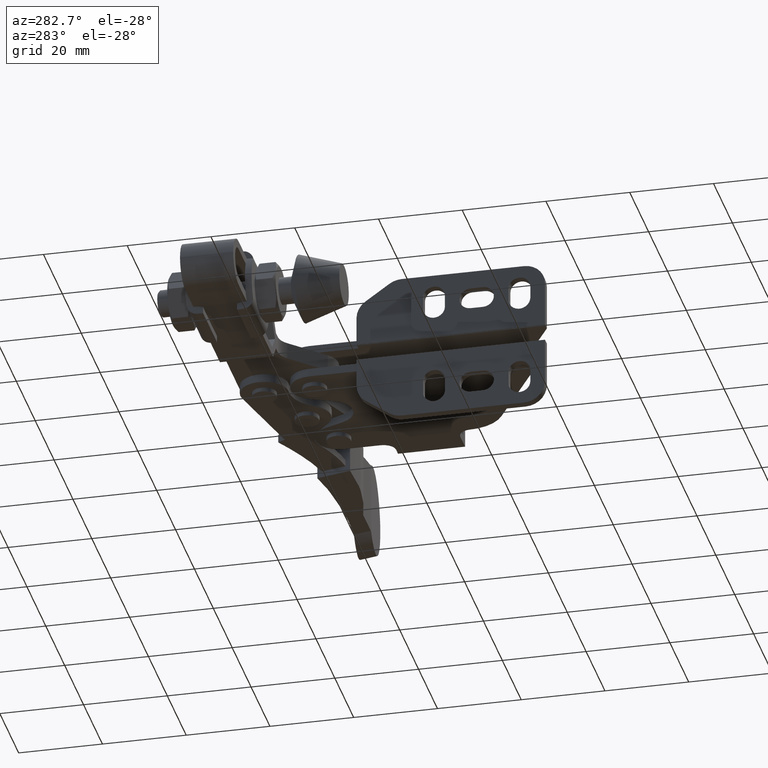
[diagram: clean part render]
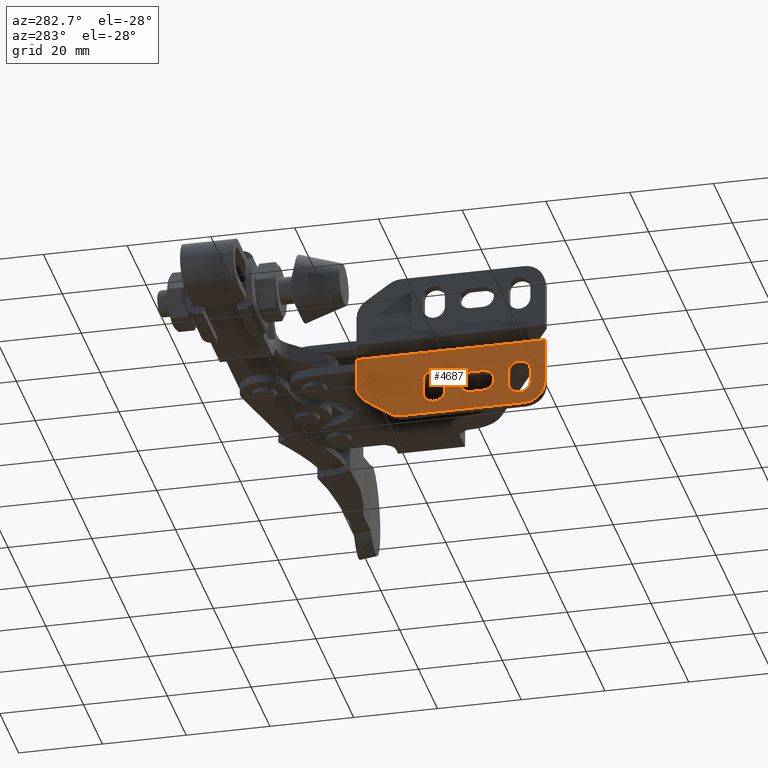
[diagram: same view with one face highlighted and labeled with its STEP entity id]
A machine part, auxiliary view. The second image highlights one B-rep face of the part: STEP entity #4687.
In plain terms, the highlighted planar face has unit normal (-1, 0.0001, 0).
Its self-contained STEP definition (entity closure, byte-faithful):
#14 = EDGE_CURVE ( 'NONE', #5847, #737, #891, .T. ) ;
#22 = CARTESIAN_POINT ( 'NONE',  ( -39.00215116450738200, -13.10340391243418200, -14.50000000000009900 ) ) ;
#72 = LINE ( 'NONE', #10039, #3658 ) ;
#96 = EDGE_CURVE ( 'NONE', #3368, #10732, #9291, .T. ) ;
#183 = CARTESIAN_POINT ( 'NONE',  ( -39.00215116450738200, -33.50340391243416600, -11.50000000000010100 ) ) ;
#190 = CARTESIAN_POINT ( 'NONE',  ( -39.00215116450738200, -7.903403912434181500, -11.50000000000010100 ) ) ;
#241 = CARTESIAN_POINT ( 'NONE',  ( -39.00215116450738200, -22.20340391243417200, -10.40000000000010000 ) ) ;
#271 = CARTESIAN_POINT ( 'NONE',  ( -39.00215116450738200, -19.20340391243417600, -13.00000000000009900 ) ) ;
#313 = CARTESIAN_POINT ( 'NONE',  ( -39.00215116450738200, -32.00340391243416600, -15.00000000000067700 ) ) ;
#458 = VERTEX_POINT ( 'NONE', #241 ) ;
#479 = DIRECTION ( 'NONE',  ( -0.0000000000000000000, 3.469446951953611000E-015, -1.000000000000000000 ) ) ;
#553 = DIRECTION ( 'NONE',  ( -1.000000000000000000, 0.0000000000000000000, 0.0000000000000000000 ) ) ;
#609 = VERTEX_POINT ( 'NONE', #1738 ) ;
#725 = CARTESIAN_POINT ( 'NONE',  ( -39.00215116450738200, -19.20340391243417600, -15.60000000000009900 ) ) ;
#737 = VERTEX_POINT ( 'NONE', #3731 ) ;
#809 = VERTEX_POINT ( 'NONE', #5213 ) ;
#836 = CARTESIAN_POINT ( 'NONE',  ( -39.00215116450738200, 0.1286231605111404200, -19.09985378199445800 ) ) ;
#882 = DIRECTION ( 'NONE',  ( 0.0000000000000000000, 0.0000000000000000000, -1.000000000000000000 ) ) ;
#891 = CIRCLE ( 'NONE', #7262, 2.599999999999994800 ) ;
#909 = LINE ( 'NONE', #10175, #5234 ) ;
#912 = EDGE_LOOP ( 'NONE', ( #7122, #9175, #6763, #4748, #6909 ) ) ;
#939 = DIRECTION ( 'NONE',  ( -1.000000000000000000, 0.0000000000000000000, 0.0000000000000000000 ) ) ;
#952 = ORIENTED_EDGE ( 'NONE', *, *, #2745, .T. ) ;
#1035 = ORIENTED_EDGE ( 'NONE', *, *, #2691, .T. ) ;
#1042 = DIRECTION ( 'NONE',  ( 0.0000000000000000000, -0.8199707563987708200, -0.5724054145890197200 ) ) ;
#1096 = CARTESIAN_POINT ( 'NONE',  ( -39.00215116450738200, -32.00340391243416600, -20.00000000000068200 ) ) ;
#1188 = EDGE_LOOP ( 'NONE', ( #4138, #7730, #10144, #4594, #4036 ) ) ;
#1394 = CARTESIAN_POINT ( 'NONE',  ( -39.00215116450738200, -37.00340391243417300, -15.00000000000028100 ) ) ;
#1563 = DIRECTION ( 'NONE',  ( 0.0000000000000000000, 0.0000000000000000000, -1.000000000000000000 ) ) ;
#1643 = AXIS2_PLACEMENT_3D ( 'NONE', #8514, #5214, #7455 ) ;
#1738 = CARTESIAN_POINT ( 'NONE',  ( -39.00215116450738200, 5.858623160511146300, -15.09985378199445800 ) ) ;
#1765 = CIRCLE ( 'NONE', #7009, 2.599999999999994800 ) ;
#1776 = DIRECTION ( 'NONE',  ( 0.0000000000000000000, 0.0000000000000000000, -1.000000000000000000 ) ) ;
#1817 = CARTESIAN_POINT ( 'NONE',  ( -39.00215116450738200, -28.30340391243417400, -11.50000000000010100 ) ) ;
#2043 = CIRCLE ( 'NONE', #9775, 2.599999999999994800 ) ;
#2156 = CARTESIAN_POINT ( 'NONE',  ( -39.00215116450738200, -13.10340391243418200, -11.50000000000010100 ) ) ;
#2261 = FACE_BOUND ( 'NONE', #1188, .T. ) ;
#2346 = VERTEX_POINT ( 'NONE', #725 ) ;
#2408 = FACE_OUTER_BOUND ( 'NONE', #9744, .T. ) ;
#2550 = EDGE_CURVE ( 'NONE', #10388, #5847, #1765, .T. ) ;
#2564 = EDGE_CURVE ( 'NONE', #3711, #10388, #909, .T. ) ;
#2570 = EDGE_CURVE ( 'NONE', #7492, #3711, #2043, .T. ) ;
#2584 = EDGE_CURVE ( 'NONE', #737, #7492, #7180, .T. ) ;
#2604 = EDGE_CURVE ( 'NONE', #5435, #458, #4726, .T. ) ;
#2607 = EDGE_CURVE ( 'NONE', #2346, #5435, #6423, .T. ) ;
#2608 = DIRECTION ( 'NONE',  ( -1.000000000000000000, 0.0000000000000000000, 0.0000000000000000000 ) ) ;
#2622 = EDGE_CURVE ( 'NONE', #8090, #2346, #3692, .T. ) ;
#2638 = EDGE_CURVE ( 'NONE', #458, #8090, #10753, .T. ) ;
#2645 = EDGE_CURVE ( 'NONE', #8999, #3368, #7747, .T. ) ;
#2659 = EDGE_CURVE ( 'NONE', #8667, #8999, #10489, .T. ) ;
#2675 = EDGE_CURVE ( 'NONE', #6275, #8667, #7057, .T. ) ;
#2677 = EDGE_CURVE ( 'NONE', #10732, #6275, #5222, .T. ) ;
#2678 = LINE ( 'NONE', #8964, #10607 ) ;
#2691 = EDGE_CURVE ( 'NONE', #809, #3958, #6411, .T. ) ;
#2692 = EDGE_CURVE ( 'NONE', #3958, #609, #10206, .T. ) ;
#2714 = EDGE_CURVE ( 'NONE', #609, #2992, #2678, .T. ) ;
#2717 = EDGE_CURVE ( 'NONE', #2992, #8425, #6929, .T. ) ;
#2734 = EDGE_CURVE ( 'NONE', #8425, #7290, #7047, .T. ) ;
#2745 = EDGE_CURVE ( 'NONE', #7290, #7680, #7277, .T. ) ;
#2764 = EDGE_CURVE ( 'NONE', #7680, #4181, #72, .T. ) ;
#2766 = EDGE_CURVE ( 'NONE', #4181, #809, #4949, .T. ) ;
#2967 = FACE_BOUND ( 'NONE', #5335, .T. ) ;
#2992 = VERTEX_POINT ( 'NONE', #836 ) ;
#3014 = DIRECTION ( 'NONE',  ( 0.0000000000000000000, 0.0000000000000000000, -1.000000000000000000 ) ) ;
#3368 = VERTEX_POINT ( 'NONE', #6803 ) ;
#3415 = VECTOR ( 'NONE', #10093, 1000.000000000000000 ) ;
#3446 = CARTESIAN_POINT ( 'NONE',  ( -39.00215116450738200, -30.90340391243416800, -11.50000000000010100 ) ) ;
#3597 = CARTESIAN_POINT ( 'NONE',  ( -39.00215116450738200, 2.996596087565896100, -11.00000000000082200 ) ) ;
#3658 = VECTOR ( 'NONE', #9174, 1000.000000000000000 ) ;
#3691 = AXIS2_PLACEMENT_3D ( 'NONE', #313, #5881, #6855 ) ;
#3692 = CIRCLE ( 'NONE', #5321, 2.600000000000000100 ) ;
#3711 = VERTEX_POINT ( 'NONE', #6695 ) ;
#3731 = CARTESIAN_POINT ( 'NONE',  ( -39.00215116450738200, -28.30340391243417400, -11.50000000000010100 ) ) ;
#3866 = DIRECTION ( 'NONE',  ( 0.0000000000000000000, 0.0000000000000000000, 1.000000000000000000 ) ) ;
#3958 = VERTEX_POINT ( 'NONE', #6564 ) ;
#4036 = ORIENTED_EDGE ( 'NONE', *, *, #96, .F. ) ;
#4095 = ORIENTED_EDGE ( 'NONE', *, *, #2764, .T. ) ;
#4138 = ORIENTED_EDGE ( 'NONE', *, *, #2645, .F. ) ;
#4181 = VERTEX_POINT ( 'NONE', #6813 ) ;
#4376 = DIRECTION ( 'NONE',  ( -1.000000000000000000, 0.0000000000000000000, 0.0000000000000000000 ) ) ;
#4453 = CARTESIAN_POINT ( 'NONE',  ( -39.00215116450738200, -13.10340391243418200, -11.50000000000010100 ) ) ;
#4482 = VECTOR ( 'NONE', #10245, 1000.000000000000000 ) ;
#4594 = ORIENTED_EDGE ( 'NONE', *, *, #2677, .F. ) ;
#4687 = ADVANCED_FACE ( 'NONE', ( #7519, #2967, #2261, #2408 ), #6013, .T. ) ;
#4726 = CIRCLE ( 'NONE', #7380, 2.600000000000000100 ) ;
#4748 = ORIENTED_EDGE ( 'NONE', *, *, #2584, .F. ) ;
#4752 = AXIS2_PLACEMENT_3D ( 'NONE', #9612, #7396, #9344 ) ;
#4949 = LINE ( 'NONE', #5160, #6785 ) ;
#5087 = VECTOR ( 'NONE', #479, 1000.000000000000000 ) ;
#5160 = CARTESIAN_POINT ( 'NONE',  ( -39.00215116450738200, -37.00340391243417300, -4.000000000000270900 ) ) ;
#5213 = CARTESIAN_POINT ( 'NONE',  ( -39.00215116450738200, 7.996596087565796700, -4.000000000000270900 ) ) ;
#5214 = DIRECTION ( 'NONE',  ( -1.000000000000000000, 0.0000000000000000000, 0.0000000000000000000 ) ) ;
#5222 = LINE ( 'NONE', #190, #6672 ) ;
#5234 = VECTOR ( 'NONE', #10209, 1000.000000000000000 ) ;
#5321 = AXIS2_PLACEMENT_3D ( 'NONE', #271, #9417, #1563 ) ;
#5335 = EDGE_LOOP ( 'NONE', ( #9349, #8426, #10706, #5553 ) ) ;
#5350 = DIRECTION ( 'NONE',  ( -1.000000000000000000, 0.0000000000000000000, 0.0000000000000000000 ) ) ;
#5435 = VERTEX_POINT ( 'NONE', #8289 ) ;
#5473 = VECTOR ( 'NONE', #7250, 1000.000000000000000 ) ;
#5495 = CARTESIAN_POINT ( 'NONE',  ( -39.00215116450738200, 7.996596087565803800, -6.000000000000272700 ) ) ;
#5553 = ORIENTED_EDGE ( 'NONE', *, *, #2638, .F. ) ;
#5658 = ORIENTED_EDGE ( 'NONE', *, *, #2734, .T. ) ;
#5847 = VERTEX_POINT ( 'NONE', #8805 ) ;
#5862 = AXIS2_PLACEMENT_3D ( 'NONE', #6185, #5350, #7494 ) ;
#5881 = DIRECTION ( 'NONE',  ( -1.000000000000000000, 0.0000000000000000000, 0.0000000000000000000 ) ) ;
#5982 = ORIENTED_EDGE ( 'NONE', *, *, #2692, .T. ) ;
#6013 = PLANE ( 'NONE',  #3691 ) ;
#6045 = CARTESIAN_POINT ( 'NONE',  ( -39.00215116450738200, -19.20340391243417600, -10.40000000000010000 ) ) ;
#6185 = CARTESIAN_POINT ( 'NONE',  ( -39.00215116450738200, -32.00340391243416600, -15.00000000000067700 ) ) ;
#6275 = VERTEX_POINT ( 'NONE', #6774 ) ;
#6329 = CARTESIAN_POINT ( 'NONE',  ( -39.00215116450738200, -10.50340391243418200, -11.50000000000010100 ) ) ;
#6363 = DIRECTION ( 'NONE',  ( 0.0000000000000000000, 1.000000000000000000, 0.0000000000000000000 ) ) ;
#6411 = LINE ( 'NONE', #5495, #5087 ) ;
#6423 = LINE ( 'NONE', #9810, #3415 ) ;
#6439 = AXIS2_PLACEMENT_3D ( 'NONE', #3597, #939, #3866 ) ;
#6525 = VECTOR ( 'NONE', #9624, 1000.000000000000000 ) ;
#6550 = VECTOR ( 'NONE', #6363, 1000.000000000000000 ) ;
#6564 = CARTESIAN_POINT ( 'NONE',  ( -39.00215116450738200, 7.996596087565803800, -11.00000000000027700 ) ) ;
#6647 = DIRECTION ( 'NONE',  ( -1.000000000000000000, 0.0000000000000000000, 0.0000000000000000000 ) ) ;
#6672 = VECTOR ( 'NONE', #7287, 1000.000000000000000 ) ;
#6695 = CARTESIAN_POINT ( 'NONE',  ( -39.00215116450738200, -33.50340391243416600, -14.50000000000009900 ) ) ;
#6763 = ORIENTED_EDGE ( 'NONE', *, *, #2570, .F. ) ;
#6774 = CARTESIAN_POINT ( 'NONE',  ( -39.00215116450738200, -7.903403912434181500, -14.50000000000009900 ) ) ;
#6785 = VECTOR ( 'NONE', #7833, 1000.000000000000000 ) ;
#6803 = CARTESIAN_POINT ( 'NONE',  ( -39.00215116450738200, -10.50340391243418200, -8.900000000000099800 ) ) ;
#6813 = CARTESIAN_POINT ( 'NONE',  ( -39.00215116450738200, -37.00340391243417300, -4.000000000000270900 ) ) ;
#6855 = DIRECTION ( 'NONE',  ( 0.0000000000000000000, 0.0000000000000000000, 1.000000000000000000 ) ) ;
#6909 = ORIENTED_EDGE ( 'NONE', *, *, #14, .F. ) ;
#6929 = CIRCLE ( 'NONE', #8516, 5.000000000000073700 ) ;
#7009 = AXIS2_PLACEMENT_3D ( 'NONE', #9586, #553, #882 ) ;
#7047 = LINE ( 'NONE', #10166, #6525 ) ;
#7057 = CIRCLE ( 'NONE', #1643, 2.600000000000001400 ) ;
#7100 = CARTESIAN_POINT ( 'NONE',  ( -39.00215116450738200, -7.903403912434179700, -11.50000000000010100 ) ) ;
#7122 = ORIENTED_EDGE ( 'NONE', *, *, #2550, .F. ) ;
#7180 = LINE ( 'NONE', #1817, #4482 ) ;
#7250 = DIRECTION ( 'NONE',  ( -0.0000000000000000000, -0.0000000000000000000, 1.000000000000000000 ) ) ;
#7262 = AXIS2_PLACEMENT_3D ( 'NONE', #3446, #10535, #9334 ) ;
#7277 = CIRCLE ( 'NONE', #5862, 5.000000000000004400 ) ;
#7287 = DIRECTION ( 'NONE',  ( 0.0000000000000000000, 0.0000000000000000000, -1.000000000000000000 ) ) ;
#7290 = VERTEX_POINT ( 'NONE', #1096 ) ;
#7380 = AXIS2_PLACEMENT_3D ( 'NONE', #8220, #7886, #1776 ) ;
#7396 = DIRECTION ( 'NONE',  ( -1.000000000000000000, 0.0000000000000000000, 0.0000000000000000000 ) ) ;
#7455 = DIRECTION ( 'NONE',  ( 0.0000000000000000000, 0.0000000000000000000, -1.000000000000000000 ) ) ;
#7492 = VERTEX_POINT ( 'NONE', #7932 ) ;
#7494 = DIRECTION ( 'NONE',  ( 0.0000000000000000000, 0.0000000000000000000, 1.000000000000000000 ) ) ;
#7519 = FACE_BOUND ( 'NONE', #912, .T. ) ;
#7604 = AXIS2_PLACEMENT_3D ( 'NONE', #6329, #6647, #8967 ) ;
#7680 = VERTEX_POINT ( 'NONE', #1394 ) ;
#7728 = CARTESIAN_POINT ( 'NONE',  ( -39.00215116450738200, -22.20340391243416900, -10.40000000000010000 ) ) ;
#7730 = ORIENTED_EDGE ( 'NONE', *, *, #2659, .F. ) ;
#7747 = CIRCLE ( 'NONE', #4752, 2.600000000000000100 ) ;
#7833 = DIRECTION ( 'NONE',  ( 0.0000000000000000000, 1.000000000000000000, 0.0000000000000000000 ) ) ;
#7886 = DIRECTION ( 'NONE',  ( -1.000000000000000000, 0.0000000000000000000, 0.0000000000000000000 ) ) ;
#7932 = CARTESIAN_POINT ( 'NONE',  ( -39.00215116450738200, -28.30340391243417400, -14.50000000000009900 ) ) ;
#8090 = VERTEX_POINT ( 'NONE', #6045 ) ;
#8220 = CARTESIAN_POINT ( 'NONE',  ( -39.00215116450738200, -22.20340391243416900, -13.00000000000009900 ) ) ;
#8289 = CARTESIAN_POINT ( 'NONE',  ( -39.00215116450738200, -22.20340391243416900, -15.60000000000009900 ) ) ;
#8425 = VERTEX_POINT ( 'NONE', #8839 ) ;
#8426 = ORIENTED_EDGE ( 'NONE', *, *, #2607, .F. ) ;
#8514 = CARTESIAN_POINT ( 'NONE',  ( -39.00215116450738200, -10.50340391243418200, -14.50000000000009900 ) ) ;
#8516 = AXIS2_PLACEMENT_3D ( 'NONE', #9450, #2608, #8683 ) ;
#8667 = VERTEX_POINT ( 'NONE', #22 ) ;
#8683 = DIRECTION ( 'NONE',  ( 0.0000000000000000000, 0.0000000000000000000, 1.000000000000000000 ) ) ;
#8790 = ORIENTED_EDGE ( 'NONE', *, *, #2766, .T. ) ;
#8805 = CARTESIAN_POINT ( 'NONE',  ( -39.00215116450738200, -30.90340391243416800, -8.900000000000105200 ) ) ;
#8839 = CARTESIAN_POINT ( 'NONE',  ( -39.00215116450738200, -2.733403912434088800, -20.00000000000068200 ) ) ;
#8964 = CARTESIAN_POINT ( 'NONE',  ( -39.00215116450738200, 5.858623160511146300, -15.09985378199445800 ) ) ;
#8967 = DIRECTION ( 'NONE',  ( 0.0000000000000000000, 0.0000000000000000000, -1.000000000000000000 ) ) ;
#8999 = VERTEX_POINT ( 'NONE', #4453 ) ;
#9127 = ORIENTED_EDGE ( 'NONE', *, *, #2714, .T. ) ;
#9174 = DIRECTION ( 'NONE',  ( 0.0000000000000000000, 0.0000000000000000000, 1.000000000000000000 ) ) ;
#9175 = ORIENTED_EDGE ( 'NONE', *, *, #2564, .F. ) ;
#9291 = CIRCLE ( 'NONE', #7604, 2.600000000000000100 ) ;
#9334 = DIRECTION ( 'NONE',  ( 0.0000000000000000000, 0.0000000000000000000, -1.000000000000000000 ) ) ;
#9344 = DIRECTION ( 'NONE',  ( 0.0000000000000000000, 0.0000000000000000000, -1.000000000000000000 ) ) ;
#9349 = ORIENTED_EDGE ( 'NONE', *, *, #2604, .F. ) ;
#9417 = DIRECTION ( 'NONE',  ( -1.000000000000000000, 0.0000000000000000000, 0.0000000000000000000 ) ) ;
#9450 = CARTESIAN_POINT ( 'NONE',  ( -39.00215116450738200, -2.733403912434088800, -15.00000000000060600 ) ) ;
#9586 = CARTESIAN_POINT ( 'NONE',  ( -39.00215116450738200, -30.90340391243416800, -11.50000000000010100 ) ) ;
#9612 = CARTESIAN_POINT ( 'NONE',  ( -39.00215116450738200, -10.50340391243418200, -11.50000000000010100 ) ) ;
#9624 = DIRECTION ( 'NONE',  ( -0.0000000000000000000, -1.000000000000000000, -0.0000000000000000000 ) ) ;
#9744 = EDGE_LOOP ( 'NONE', ( #1035, #5982, #9127, #10395, #5658, #952, #4095, #8790 ) ) ;
#9775 = AXIS2_PLACEMENT_3D ( 'NONE', #9979, #4376, #3014 ) ;
#9810 = CARTESIAN_POINT ( 'NONE',  ( -39.00215116450738200, -22.20340391243416900, -15.60000000000009900 ) ) ;
#9979 = CARTESIAN_POINT ( 'NONE',  ( -39.00215116450738200, -30.90340391243416800, -14.50000000000009900 ) ) ;
#10039 = CARTESIAN_POINT ( 'NONE',  ( -39.00215116450738200, -37.00340391243417300, -15.00000000000028100 ) ) ;
#10093 = DIRECTION ( 'NONE',  ( -0.0000000000000000000, -1.000000000000000000, -0.0000000000000000000 ) ) ;
#10144 = ORIENTED_EDGE ( 'NONE', *, *, #2675, .F. ) ;
#10166 = CARTESIAN_POINT ( 'NONE',  ( -39.00215116450738200, -32.00340391243416600, -20.00000000000068200 ) ) ;
#10175 = CARTESIAN_POINT ( 'NONE',  ( -39.00215116450738200, -33.50340391243416600, -11.50000000000010100 ) ) ;
#10206 = CIRCLE ( 'NONE', #6439, 4.999999999999908500 ) ;
#10209 = DIRECTION ( 'NONE',  ( -0.0000000000000000000, -0.0000000000000000000, 1.000000000000000000 ) ) ;
#10245 = DIRECTION ( 'NONE',  ( 0.0000000000000000000, 0.0000000000000000000, -1.000000000000000000 ) ) ;
#10388 = VERTEX_POINT ( 'NONE', #183 ) ;
#10395 = ORIENTED_EDGE ( 'NONE', *, *, #2717, .T. ) ;
#10489 = LINE ( 'NONE', #2156, #5473 ) ;
#10535 = DIRECTION ( 'NONE',  ( -1.000000000000000000, 0.0000000000000000000, 0.0000000000000000000 ) ) ;
#10607 = VECTOR ( 'NONE', #1042, 1000.000000000000000 ) ;
#10706 = ORIENTED_EDGE ( 'NONE', *, *, #2622, .F. ) ;
#10732 = VERTEX_POINT ( 'NONE', #7100 ) ;
#10753 = LINE ( 'NONE', #7728, #6550 ) ;